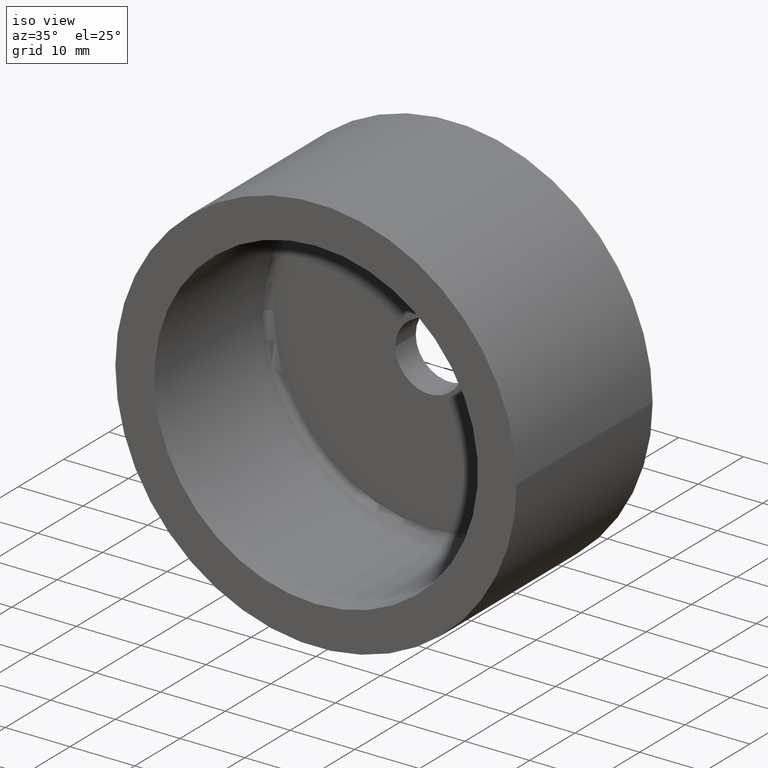
[diagram: clean part render]
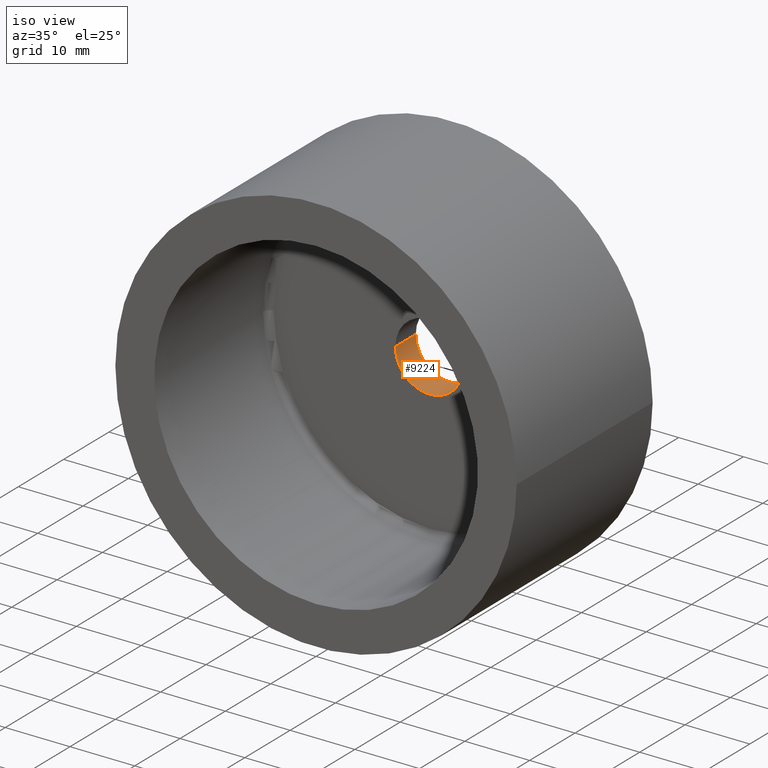
[diagram: same view with one face highlighted and labeled with its STEP entity id]
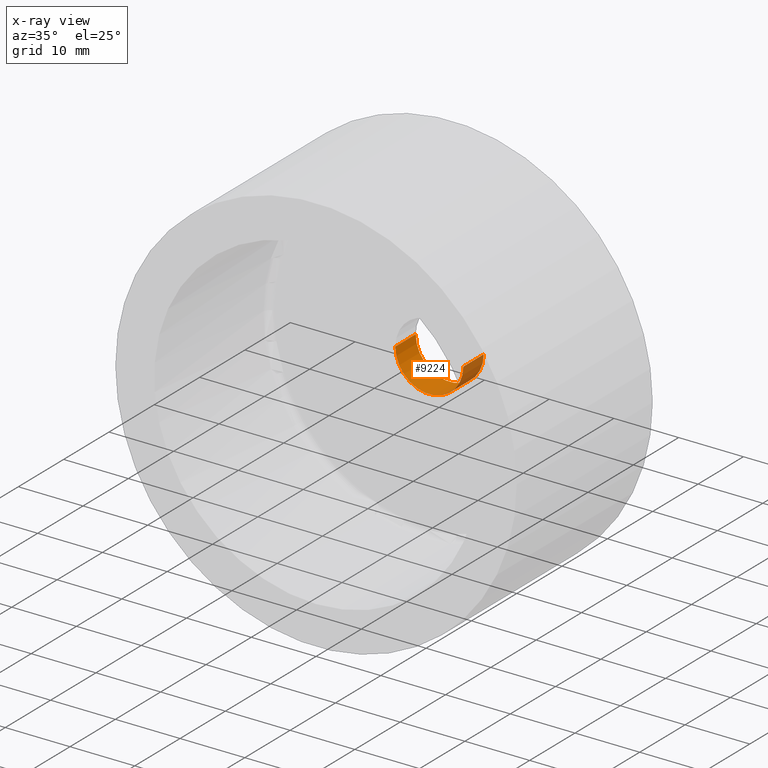
[diagram: x-ray of the same camera — body ghosted, the highlighted face saturated]
A machine part, iso view. The second image highlights one B-rep face of the part: STEP entity #9224.
The next image is the same camera in x-ray: the body ghosted, the highlighted face saturated — about 18% of this face is hidden behind the body in this view.
In plain terms, the highlighted cylindrical surface (partial cylindrical patch) has radius 5.25 mm, axis along (-0, 1, -0).
Its self-contained STEP definition (entity closure, byte-faithful):
#894 = CYLINDRICAL_SURFACE ( 'NONE', #13588, 5.250000000000003553 ) ;
#1080 = DIRECTION ( 'NONE',  ( -1.156482317317871725E-16, 1.000000000000000000, -0.000000000000000000 ) ) ;
#1178 = ORIENTED_EDGE ( 'NONE', *, *, #1729, .T. ) ;
#1620 = DIRECTION ( 'NONE',  ( -1.156482317317871725E-16, 1.000000000000000000, -0.000000000000000000 ) ) ;
#1729 = EDGE_CURVE ( 'NONE', #4140, #9876, #7464, .T. ) ;
#2189 = EDGE_CURVE ( 'NONE', #4140, #14491, #14196, .T. ) ;
#4140 = VERTEX_POINT ( 'NONE', #14444 ) ;
#4318 = VECTOR ( 'NONE', #15403, 1000.000000000000000 ) ;
#4521 = VERTEX_POINT ( 'NONE', #4994 ) ;
#4805 = LINE ( 'NONE', #5599, #8740 ) ;
#4994 = CARTESIAN_POINT ( 'NONE',  ( -5.250000000000003553, 29.49999999999999289, 0.000000000000000000 ) ) ;
#5257 = ORIENTED_EDGE ( 'NONE', *, *, #11152, .T. ) ;
#5522 = DIRECTION ( 'NONE',  ( -1.156482317317871725E-16, 1.000000000000000000, -0.000000000000000000 ) ) ;
#5599 = CARTESIAN_POINT ( 'NONE',  ( -5.250000000000007105, 29.99999999999999645, 0.000000000000000000 ) ) ;
#6741 = EDGE_LOOP ( 'NONE', ( #13221, #1178, #5257, #12232 ) ) ;
#7350 = DIRECTION ( 'NONE',  ( -1.000000000000000000, 0.000000000000000000, 0.000000000000000000 ) ) ;
#7464 = LINE ( 'NONE', #12860, #4318 ) ;
#7518 = CARTESIAN_POINT ( 'NONE',  ( 5.249999999999996447, 29.49999999999999289, 6.735557395310442023E-16 ) ) ;
#7540 = CIRCLE ( 'NONE', #12416, 5.250000000000000000 ) ;
#8307 = CARTESIAN_POINT ( 'NONE',  ( -3.411622836087719962E-15, 29.49999999999999289, 0.000000000000000000 ) ) ;
#8740 = VECTOR ( 'NONE', #11662, 1000.000000000000000 ) ;
#9224 = ADVANCED_FACE ( 'NONE', ( #12651 ), #894, .F. ) ;
#9538 = EDGE_CURVE ( 'NONE', #14491, #4521, #4805, .T. ) ;
#9876 = VERTEX_POINT ( 'NONE', #7518 ) ;
#11152 = EDGE_CURVE ( 'NONE', #9876, #4521, #7540, .T. ) ;
#11662 = DIRECTION ( 'NONE',  ( -1.156482317317871725E-16, 1.000000000000000000, -0.000000000000000000 ) ) ;
#11948 = DIRECTION ( 'NONE',  ( -1.000000000000000000, 0.000000000000000000, 0.000000000000000000 ) ) ;
#12232 = ORIENTED_EDGE ( 'NONE', *, *, #9538, .F. ) ;
#12335 = CARTESIAN_POINT ( 'NONE',  ( -2.891205793294678228E-15, 24.99999999999999289, 0.000000000000000000 ) ) ;
#12416 = AXIS2_PLACEMENT_3D ( 'NONE', #8307, #1080, #11948 ) ;
#12651 = FACE_OUTER_BOUND ( 'NONE', #6741, .T. ) ;
#12860 = CARTESIAN_POINT ( 'NONE',  ( 5.250000000000000000, 29.99999999999999645, 6.429395695523609083E-16 ) ) ;
#13221 = ORIENTED_EDGE ( 'NONE', *, *, #2189, .F. ) ;
#13588 = AXIS2_PLACEMENT_3D ( 'NONE', #15017, #5522, #14020 ) ;
#14020 = DIRECTION ( 'NONE',  ( -1.000000000000000000, 0.000000000000000000, 0.000000000000000000 ) ) ;
#14150 = AXIS2_PLACEMENT_3D ( 'NONE', #12335, #1620, #7350 ) ;
#14196 = CIRCLE ( 'NONE', #14150, 5.250000000000003553 ) ;
#14444 = CARTESIAN_POINT ( 'NONE',  ( 5.250000000000000888, 24.99999999999999289, 6.429395695523609083E-16 ) ) ;
#14491 = VERTEX_POINT ( 'NONE', #14957 ) ;
#14957 = CARTESIAN_POINT ( 'NONE',  ( -5.250000000000006217, 24.99999999999999289, 0.000000000000000000 ) ) ;
#15017 = CARTESIAN_POINT ( 'NONE',  ( -3.469446951953614189E-15, 29.99999999999999645, 0.000000000000000000 ) ) ;
#15403 = DIRECTION ( 'NONE',  ( -1.156482317317871725E-16, 1.000000000000000000, -0.000000000000000000 ) ) ;